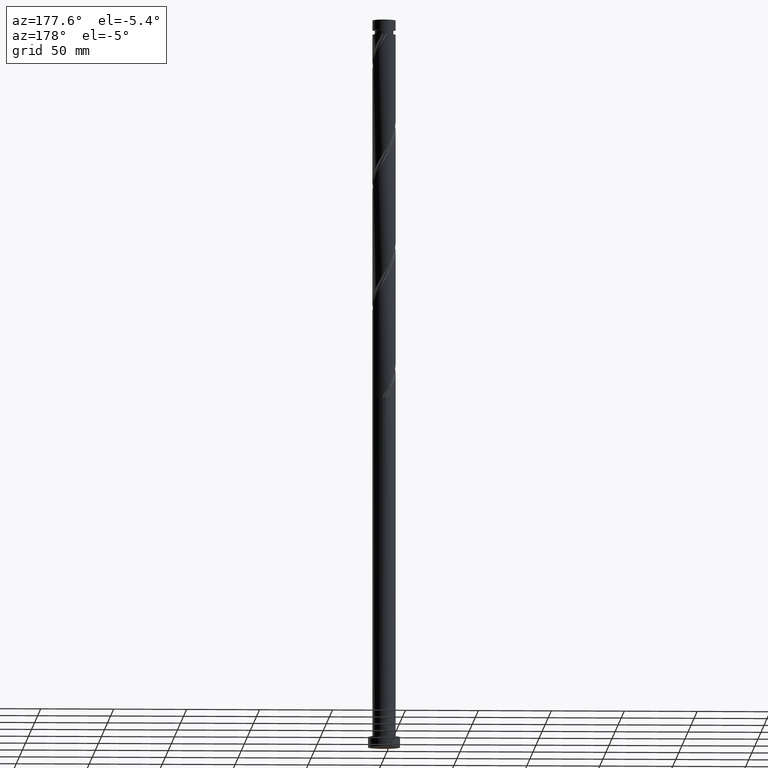
[diagram: clean part render]
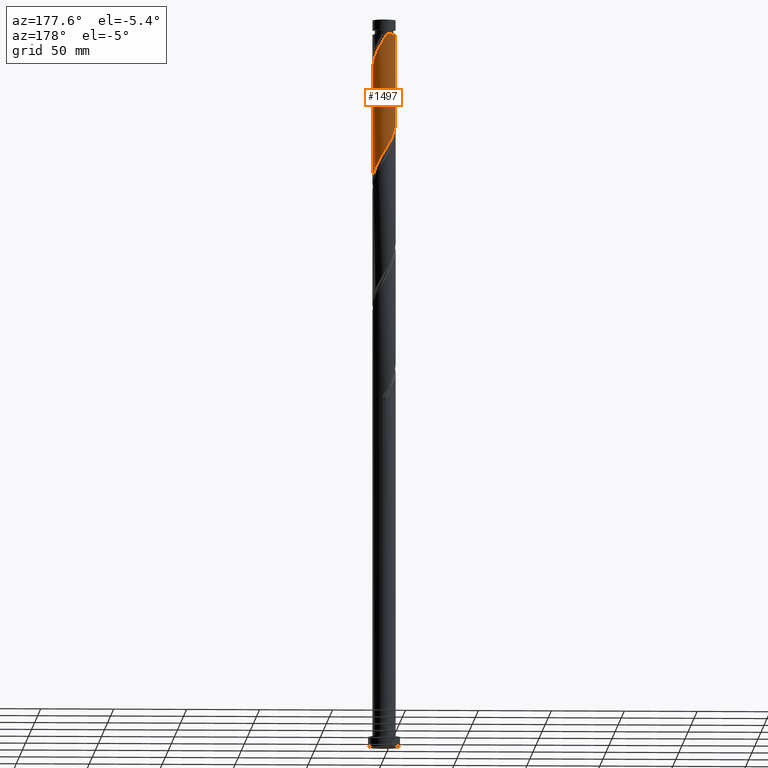
[diagram: same view with one face highlighted and labeled with its STEP entity id]
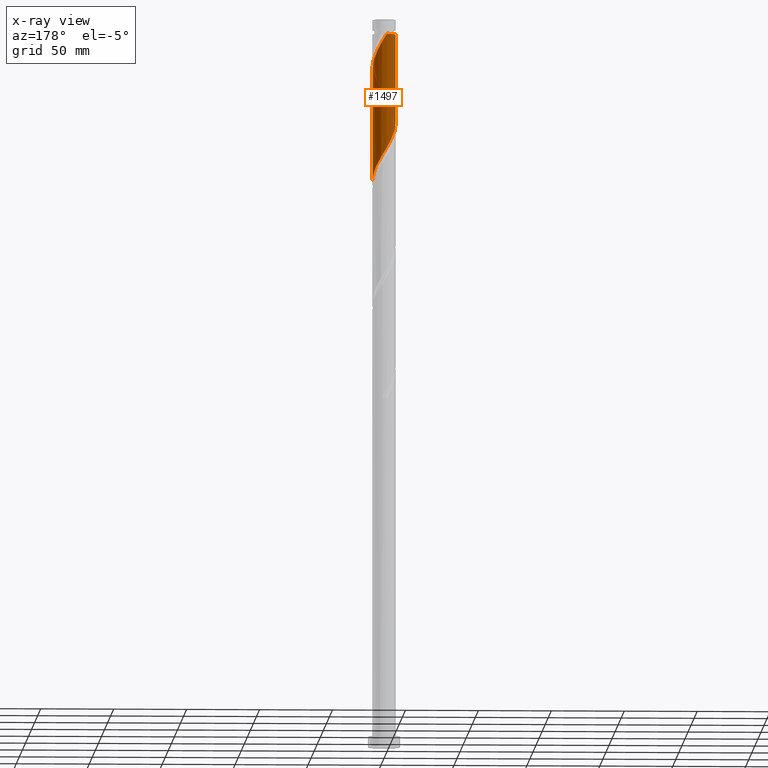
[diagram: x-ray of the same camera — body ghosted, the highlighted face saturated]
A machine part, auxiliary view. The second image highlights one B-rep face of the part: STEP entity #1497.
The next image is the same camera in x-ray: the body ghosted, the highlighted face saturated — about 0% of this face is hidden behind the body in this view.
In plain terms, the highlighted cylindrical surface (edge-blend (fillet) strip) has radius 8 mm, axis along (-0, -0, -1).
Its self-contained STEP definition (entity closure, byte-faithful):
#22 = CARTESIAN_POINT ( 'NONE',  ( 4.418017382144912020, 6.669416946860164508, 479.7312052307718204 ) ) ;
#44 = CARTESIAN_POINT ( 'NONE',  ( -1.529440464544431055, 7.852439867035857723, 412.0228718974384492 ) ) ;
#58 = VERTEX_POINT ( 'NONE', #1489 ) ;
#59 = VECTOR ( 'NONE', #651, 1000.000000000000000 ) ;
#99 = CARTESIAN_POINT ( 'NONE',  ( 6.669416946860161843, 4.418017382144904026, 396.3978718974385060 ) ) ;
#108 = CARTESIAN_POINT ( 'NONE',  ( 2.364152501690763852, 7.683203665594592557, 405.5124552307719910 ) ) ;
#114 = CARTESIAN_POINT ( 'NONE',  ( -1.591979899368988205, 7.839999999984010870, 490.1478718974384492 ) ) ;
#173 = CARTESIAN_POINT ( 'NONE',  ( 5.634265116796116857, 5.679353536596799756, 477.1270385641051348 ) ) ;
#202 = CARTESIAN_POINT ( 'NONE',  ( 2.302838286826542014, 7.701803129331649345, 483.6374552307718773 ) ) ;
#213 = CARTESIAN_POINT ( 'NONE',  ( 7.378776727149920944, 3.090898576606946779, 471.9187052307718773 ) ) ;
#226 = CARTESIAN_POINT ( 'NONE',  ( -7.683203665594589005, 2.364152501690765629, 426.3457885641052485 ) ) ;
#244 = VERTEX_POINT ( 'NONE', #114 ) ;
#269 = CARTESIAN_POINT ( 'NONE',  ( 3.090898576606946779, 7.378776727149911174, 404.2103718974385629 ) ) ;
#320 = CARTESIAN_POINT ( 'NONE',  ( 0.000000000000000000, 0.000000000000000000, 500.0000000000000000 ) ) ;
#353 = CARTESIAN_POINT ( 'NONE',  ( -5.074897616815214008, 6.234280214836361189, 418.5332885641051348 ) ) ;
#365 = CARTESIAN_POINT ( 'NONE',  ( -7.378776727149912062, 3.090898576606943671, 425.0437052307718773 ) ) ;
#371 = ORIENTED_EDGE ( 'NONE', *, *, #1283, .F. ) ;
#374 = CARTESIAN_POINT ( 'NONE',  ( 7.996796334405413376, 0.8198072970504307611, 468.0124552307718204 ) ) ;
#433 = EDGE_CURVE ( 'NONE', #58, #453, #598, .T. ) ;
#453 = VERTEX_POINT ( 'NONE', #1277 ) ;
#477 = CYLINDRICAL_SURFACE ( 'NONE', #838, 8.000000000000000000 ) ;
#487 = ORIENTED_EDGE ( 'NONE', *, *, #433, .T. ) ;
#500 = CARTESIAN_POINT ( 'NONE',  ( 0.7560426422623273135, 8.003076604740078537, 486.2416218974384492 ) ) ;
#503 = CARTESIAN_POINT ( 'NONE',  ( -6.193632616776999278, 5.124426858357231218, 421.1374552307719341 ) ) ;
#512 = CARTESIAN_POINT ( 'NONE',  ( -2.302838286826536240, 7.701803129331644904, 413.3249552307718773 ) ) ;
#524 = CARTESIAN_POINT ( 'NONE',  ( 1.591979899370598917, 7.840000000000000746, 406.8145385641052485 ) ) ;
#554 = CARTESIAN_POINT ( 'NONE',  ( 5.124426858357231218, 6.193632616776997502, 400.3041218974385060 ) ) ;
#598 = LINE ( 'NONE', #775, #694 ) ;
#602 = CARTESIAN_POINT ( 'NONE',  ( 6.234280214836363854, 5.074897616815213119, 397.6999552307719341 ) ) ;
#638 = ORIENTED_EDGE ( 'NONE', *, *, #1428, .T. ) ;
#651 = DIRECTION ( 'NONE',  ( -0.000000000000000000, -0.000000000000000000, -1.000000000000000000 ) ) ;
#660 = CARTESIAN_POINT ( 'NONE',  ( -1.591979899368988205, 7.839999999984010870, 490.1478718974384492 ) ) ;
#681 = CARTESIAN_POINT ( 'NONE',  ( 7.683203665594600551, 2.364152501690762076, 470.6166218974385060 ) ) ;
#683 = CARTESIAN_POINT ( 'NONE',  ( -0.7560426422623246490, 8.003076604740073208, 410.7207885641054190 ) ) ;
#694 = VECTOR ( 'NONE', #2079, 1000.000000000000000 ) ;
#702 = CARTESIAN_POINT ( 'NONE',  ( -0.03188232739404774779, 7.999936469572747733, 487.5437052307718204 ) ) ;
#742 = ORIENTED_EDGE ( 'NONE', *, *, #1554, .F. ) ;
#745 = CARTESIAN_POINT ( 'NONE',  ( 8.000000000000001776, 0.7718385194318438947, 389.9140489808514758 ) ) ;
#775 = CARTESIAN_POINT ( 'NONE',  ( 8.000000000000000000, 9.797174393178825657E-16, 500.0000000000000000 ) ) ;
#779 = CARTESIAN_POINT ( 'NONE',  ( -7.999999999999952927, 0.000000000000000000, 490.1478718974385629 ) ) ;
#825 = CARTESIAN_POINT ( 'NONE',  ( 6.193632616777007271, 5.124426858357233883, 475.8249552307718204 ) ) ;
#838 = AXIS2_PLACEMENT_3D ( 'NONE', #320, #1769, #1298 ) ;
#855 = CARTESIAN_POINT ( 'NONE',  ( -0.8198072970504302059, 7.996796334405413376, 488.8457885641051917 ) ) ;
#858 = CARTESIAN_POINT ( 'NONE',  ( -7.999999999999998224, 0.01594122699408843241, 430.2783819875846802 ) ) ;
#870 =( BOUNDED_CURVE ( )  B_SPLINE_CURVE ( 2, ( #1842, #858, #1861, #1692, #1506, #226, #365, #1515, #1977, #503, #1164, #353, #1496, #1342, #1831, #512, #44, #683, #1353, #1996, #524, #108, #269, #2025, #1381, #554, #1219, #602, #99, #1410, #1062, #1700, #1907, #745, #1868 ),
 .UNSPECIFIED., .F., .T. ) 
 B_SPLINE_CURVE_WITH_KNOTS ( ( 3, 2, 2, 2, 2, 2, 2, 2, 2, 2, 2, 2, 2, 2, 2, 2, 2, 3 ),
 ( 0.4295286902180872057, 0.4296875000000000000, 0.4375000000000000000, 0.4453125000000000000, 0.4531250000000000000, 0.4609375000000000000, 0.4687500000000000000, 0.4765625000000000000, 0.4843750000000000000, 0.4921875000000000000, 0.5000000000000000000, 0.5078125000000000000, 0.5156250000000000000, 0.5234375000000000000, 0.5312500000000000000, 0.5390625000000000000, 0.5468750000000000000, 0.5545286902180872612 ),
 .UNSPECIFIED. ) 
 CURVE ( )  GEOMETRIC_REPRESENTATION_ITEM ( )  RATIONAL_B_SPLINE_CURVE ( ( 0.9089165573359369033, 0.9090019243628416623, 0.9090909090909334855, 0.9047133878838395926, 0.9090909090909334855, 0.9047133878838395926, 0.9090909090909334855, 0.9047133878838395926, 0.9090909090909334855, 0.9047133878838395926, 0.9090909090909334855, 0.9047133878838395926, 0.9090909090909334855, 0.9047133878838395926, 0.9090909090909334855, 0.9047133878838395926, 0.9090909090909334855, 0.9047133878838395926, 0.9090909090909334855, 0.9047133878838395926, 0.9090909090909334855, 0.9047133878838395926, 0.9090909090909334855, 0.9047133878838395926, 0.9090909090909334855, 0.9047133878838395926, 0.9090909090909334855, 0.9047133878838395926, 0.9090909090909334855, 0.9047133878838395926, 0.9090909090909334855, 0.9047133878838395926, 0.9090909090909334855, 0.9048023726119314158, 0.9089165573359369033 ) ) 
 REPRESENTATION_ITEM ( '' )  );
#906 = DIRECTION ( 'NONE',  ( -1.000000000000000000, 0.000000000000000000, 0.000000000000000000 ) ) ;
#983 = CARTESIAN_POINT ( 'NONE',  ( 7.999936469572747733, 0.03188232739404819188, 466.7103718974385629 ) ) ;
#1017 = CARTESIAN_POINT ( 'NONE',  ( 3.031987717150569583, 7.403178404107808142, 482.3353718974385060 ) ) ;
#1028 = CARTESIAN_POINT ( 'NONE',  ( 7.074349788705241338, 3.817644651523121269, 473.2207885641051348 ) ) ;
#1045 = AXIS2_PLACEMENT_3D ( 'NONE', #1241, #1887, #906 ) ;
#1050 = EDGE_LOOP ( 'NONE', ( #1440, #487, #371, #742, #638 ) ) ;
#1062 = CARTESIAN_POINT ( 'NONE',  ( 7.403178404107800148, 3.031987717150562478, 393.7937052307718773 ) ) ;
#1164 = CARTESIAN_POINT ( 'NONE',  ( -5.634265116796108863, 5.679353536596797092, 419.8353718974385060 ) ) ;
#1194 = CARTESIAN_POINT ( 'NONE',  ( 6.633991202741123416, 4.471035754940180240, 474.5228718974385629 ) ) ;
#1219 = CARTESIAN_POINT ( 'NONE',  ( 5.679353536596797092, 5.634265116796108863, 399.0020385641051348 ) ) ;
#1241 = CARTESIAN_POINT ( 'NONE',  ( 0.000000000000000000, 0.000000000000000000, 490.1478718974385629 ) ) ;
#1277 = CARTESIAN_POINT ( 'NONE',  ( 7.999999999999998224, 8.096477268842905008E-15, 388.6380688754352946 ) ) ;
#1283 = EDGE_CURVE ( 'NONE', #1947, #453, #870, .T. ) ;
#1298 = DIRECTION ( 'NONE',  ( -1.000000000000000000, 0.000000000000000000, 0.000000000000000000 ) ) ;
#1342 = CARTESIAN_POINT ( 'NONE',  ( -3.761137147474594933, 7.104553678883956280, 415.9291218974385629 ) ) ;
#1353 = CARTESIAN_POINT ( 'NONE',  ( 0.03188232739405234828, 7.999936469572738851, 409.4187052307718773 ) ) ;
#1360 = CARTESIAN_POINT ( 'NONE',  ( 8.000000000000008882, 0.01594122699406713695, 466.6840284739589606 ) ) ;
#1365 = CIRCLE ( 'NONE', #1045, 7.999999999999952927 ) ;
#1381 = CARTESIAN_POINT ( 'NONE',  ( 4.471035754940180240, 6.633991202741113646, 401.6062052307718773 ) ) ;
#1410 = CARTESIAN_POINT ( 'NONE',  ( 7.104553678883955392, 3.761137147474595821, 395.0957885641051917 ) ) ;
#1428 = EDGE_CURVE ( 'NONE', #1620, #244, #1365, .T. ) ;
#1440 = ORIENTED_EDGE ( 'NONE', *, *, #1710, .F. ) ;
#1452 = LINE ( 'NONE', #2084, #59 ) ;
#1484 = CARTESIAN_POINT ( 'NONE',  ( 5.074897616815219337, 6.234280214836369183, 478.4291218974385060 ) ) ;
#1489 = CARTESIAN_POINT ( 'NONE',  ( 8.000000000000008882, -7.268936774513624780E-16, 466.6576749194417744 ) ) ;
#1496 = CARTESIAN_POINT ( 'NONE',  ( -4.418017382144907579, 6.669416946860160067, 417.2312052307719341 ) ) ;
#1497 = ADVANCED_FACE ( 'NONE', ( #1565 ), #477, .T. ) ;
#1503 = CARTESIAN_POINT ( 'NONE',  ( 8.000000000000008882, -7.268936774513624780E-16, 466.6576749194417175 ) ) ;
#1506 = CARTESIAN_POINT ( 'NONE',  ( -7.840000000000000746, 1.591979899370597584, 427.6478718974383924 ) ) ;
#1515 = CARTESIAN_POINT ( 'NONE',  ( -7.074349788705235120, 3.817644651523121269, 423.7416218974386197 ) ) ;
#1524 = CARTESIAN_POINT ( 'NONE',  ( 3.761137147474603371, 7.104553678883959833, 481.0332885641051348 ) ) ;
#1554 = EDGE_CURVE ( 'NONE', #1620, #1947, #1452, .T. ) ;
#1565 = FACE_OUTER_BOUND ( 'NONE', #1050, .T. ) ;
#1620 = VERTEX_POINT ( 'NONE', #779 ) ;
#1692 = CARTESIAN_POINT ( 'NONE',  ( -7.996796334405404494, 0.8198072970504293178, 428.9499552307718204 ) ) ;
#1700 = CARTESIAN_POINT ( 'NONE',  ( 7.701803129331644904, 2.302838286826536240, 392.4916218974385629 ) ) ;
#1710 = EDGE_CURVE ( 'NONE', #58, #244, #1750, .T. ) ;
#1750 =( BOUNDED_CURVE ( )  B_SPLINE_CURVE ( 2, ( #1503, #1360, #983, #374, #1840, #681, #213, #1028, #1194, #825, #173, #1484, #22, #1524, #1017, #202, #1985, #500, #702, #855, #660 ),
 .UNSPECIFIED., .F., .T. ) 
 B_SPLINE_CURVE_WITH_KNOTS ( ( 3, 2, 2, 2, 2, 2, 2, 2, 2, 2, 3 ),
 ( 0.6795286902180870392, 0.6796875000000000000, 0.6875000000000000000, 0.6953125000000000000, 0.7031250000000000000, 0.7109375000000000000, 0.7187500000000000000, 0.7265625000000000000, 0.7343750000000000000, 0.7421875000000000000, 0.7500000000000000000 ),
 .UNSPECIFIED. ) 
 CURVE ( )  GEOMETRIC_REPRESENTATION_ITEM ( )  RATIONAL_B_SPLINE_CURVE ( ( 0.9089165573359409001, 0.9090019243628457701, 0.9090909090909375934, 0.9047133878838438115, 0.9090909090909375934, 0.9047133878838438115, 0.9090909090909375934, 0.9047133878838438115, 0.9090909090909375934, 0.9047133878838438115, 0.9090909090909375934, 0.9047133878838438115, 0.9090909090909375934, 0.9047133878838438115, 0.9090909090909375934, 0.9047133878838438115, 0.9090909090909375934, 0.9047133878838438115, 0.9090909090909375934, 0.9047133878838438115, 0.9090909090909375934 ) ) 
 REPRESENTATION_ITEM ( '' )  );
#1769 = DIRECTION ( 'NONE',  ( -0.000000000000000000, -0.000000000000000000, -1.000000000000000000 ) ) ;
#1789 = CARTESIAN_POINT ( 'NONE',  ( -7.999999999999998224, -7.306213373357317304E-15, 430.3047355421019802 ) ) ;
#1831 = CARTESIAN_POINT ( 'NONE',  ( -3.031987717150565587, 7.403178404107800148, 414.6270385641051917 ) ) ;
#1840 = CARTESIAN_POINT ( 'NONE',  ( 7.840000000000008740, 1.591979899370596918, 469.3145385641052485 ) ) ;
#1842 = CARTESIAN_POINT ( 'NONE',  ( -7.999999999999998224, -7.306213373357317304E-15, 430.3047355421019802 ) ) ;
#1861 = CARTESIAN_POINT ( 'NONE',  ( -7.999936469572738851, 0.03188232739405277155, 430.2520385641051348 ) ) ;
#1868 = CARTESIAN_POINT ( 'NONE',  ( 7.999999999999998224, 8.096477268842903430E-15, 388.6380688754352946 ) ) ;
#1887 = DIRECTION ( 'NONE',  ( -0.000000000000000000, -0.000000000000000000, -1.000000000000000000 ) ) ;
#1907 = CARTESIAN_POINT ( 'NONE',  ( 7.852439867035857723, 1.529440464544433276, 391.1895385641052485 ) ) ;
#1947 = VERTEX_POINT ( 'NONE', #1789 ) ;
#1977 = CARTESIAN_POINT ( 'NONE',  ( -6.633991202741118087, 4.471035754940177576, 422.4395385641051917 ) ) ;
#1985 = CARTESIAN_POINT ( 'NONE',  ( 1.529440464544438827, 7.852439867035863941, 484.9395385641051917 ) ) ;
#1996 = CARTESIAN_POINT ( 'NONE',  ( 0.8198072970504296508, 7.996796334405404494, 408.1166218974385629 ) ) ;
#2025 = CARTESIAN_POINT ( 'NONE',  ( 3.817644651523122157, 7.074349788705234232, 402.9082885641051917 ) ) ;
#2079 = DIRECTION ( 'NONE',  ( -0.000000000000000000, -0.000000000000000000, -1.000000000000000000 ) ) ;
#2084 = CARTESIAN_POINT ( 'NONE',  ( -8.000000000000000000, 0.000000000000000000, 500.0000000000000000 ) ) ;